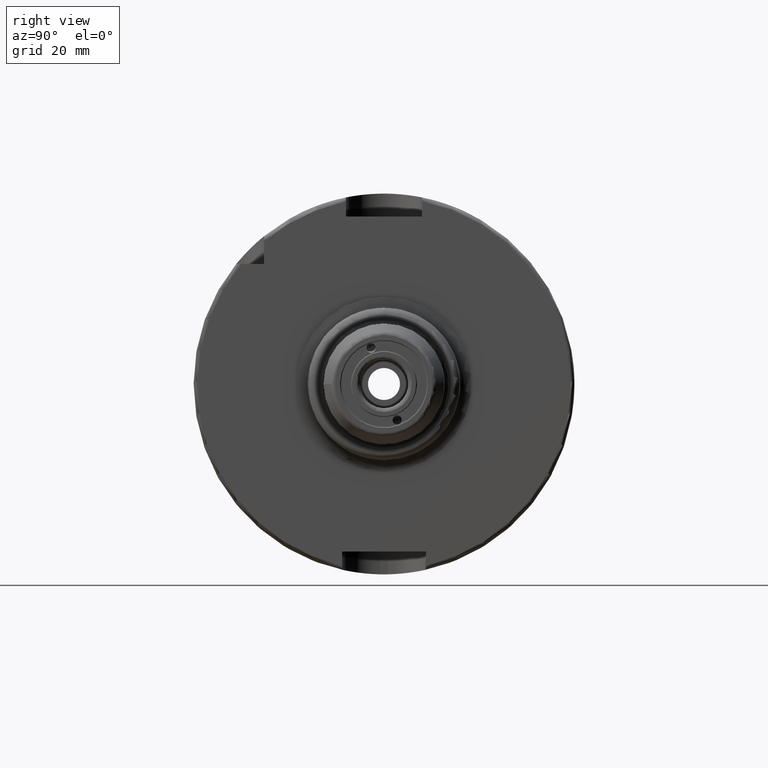
[diagram: clean part render]
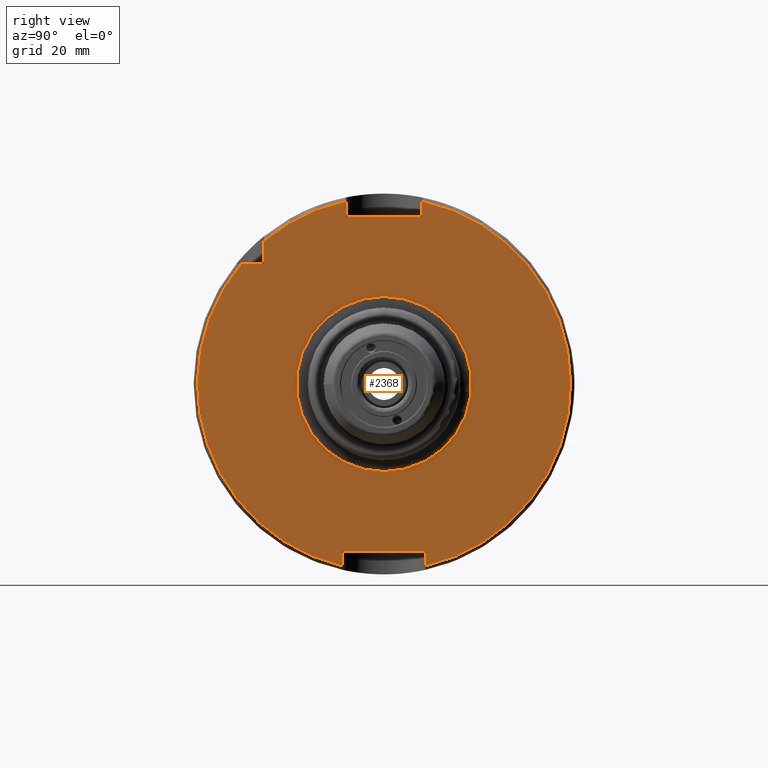
[diagram: same view with one face highlighted and labeled with its STEP entity id]
A machine part, right view. The second image highlights one B-rep face of the part: STEP entity #2368.
In plain terms, the highlighted planar face has unit normal (1, 0, 0).
Its self-contained STEP definition (entity closure, byte-faithful):
#90=FACE_BOUND('',#472,.T.);
#140=CIRCLE('',#2569,23.);
#141=CIRCLE('',#2571,49.);
#142=CIRCLE('',#2572,49.);
#143=CIRCLE('',#2573,49.);
#261=PLANE('',#2570);
#325=FACE_OUTER_BOUND('',#471,.T.);
#471=EDGE_LOOP('',(#1701,#1702,#1703,#1704,#1705,#1706,#1707,#1708,#1709,
#1710,#1711));
#472=EDGE_LOOP('',(#1712));
#689=LINE('',#3938,#811);
#690=LINE('',#3942,#812);
#691=LINE('',#3944,#813);
#692=LINE('',#3946,#814);
#693=LINE('',#3950,#815);
#694=LINE('',#3952,#816);
#695=LINE('',#3954,#817);
#696=LINE('',#3957,#818);
#811=VECTOR('',#2963,10.);
#812=VECTOR('',#2966,10.);
#813=VECTOR('',#2967,10.);
#814=VECTOR('',#2968,10.);
#815=VECTOR('',#2971,10.);
#816=VECTOR('',#2972,10.);
#817=VECTOR('',#2973,10.);
#818=VECTOR('',#2976,10.);
#977=VERTEX_POINT('',#3932);
#978=VERTEX_POINT('',#3936);
#979=VERTEX_POINT('',#3937);
#980=VERTEX_POINT('',#3939);
#981=VERTEX_POINT('',#3941);
#982=VERTEX_POINT('',#3943);
#983=VERTEX_POINT('',#3945);
#984=VERTEX_POINT('',#3947);
#985=VERTEX_POINT('',#3949);
#986=VERTEX_POINT('',#3951);
#987=VERTEX_POINT('',#3953);
#988=VERTEX_POINT('',#3955);
#1251=EDGE_CURVE('',#977,#977,#140,.T.);
#1252=EDGE_CURVE('',#978,#979,#689,.T.);
#1253=EDGE_CURVE('',#979,#980,#141,.T.);
#1254=EDGE_CURVE('',#980,#981,#690,.T.);
#1255=EDGE_CURVE('',#981,#982,#691,.T.);
#1256=EDGE_CURVE('',#982,#983,#692,.T.);
#1257=EDGE_CURVE('',#983,#984,#142,.T.);
#1258=EDGE_CURVE('',#984,#985,#693,.T.);
#1259=EDGE_CURVE('',#985,#986,#694,.T.);
#1260=EDGE_CURVE('',#986,#987,#695,.T.);
#1261=EDGE_CURVE('',#987,#988,#143,.T.);
#1262=EDGE_CURVE('',#988,#978,#696,.T.);
#1701=ORIENTED_EDGE('',*,*,#1252,.T.);
#1702=ORIENTED_EDGE('',*,*,#1253,.T.);
#1703=ORIENTED_EDGE('',*,*,#1254,.T.);
#1704=ORIENTED_EDGE('',*,*,#1255,.T.);
#1705=ORIENTED_EDGE('',*,*,#1256,.T.);
#1706=ORIENTED_EDGE('',*,*,#1257,.T.);
#1707=ORIENTED_EDGE('',*,*,#1258,.T.);
#1708=ORIENTED_EDGE('',*,*,#1259,.T.);
#1709=ORIENTED_EDGE('',*,*,#1260,.T.);
#1710=ORIENTED_EDGE('',*,*,#1261,.T.);
#1711=ORIENTED_EDGE('',*,*,#1262,.T.);
#1712=ORIENTED_EDGE('',*,*,#1251,.F.);
#2368=ADVANCED_FACE('',(#325,#90),#261,.T.);
#2569=AXIS2_PLACEMENT_3D('',#3934,#2959,#2960);
#2570=AXIS2_PLACEMENT_3D('',#3935,#2961,#2962);
#2571=AXIS2_PLACEMENT_3D('',#3940,#2964,#2965);
#2572=AXIS2_PLACEMENT_3D('',#3948,#2969,#2970);
#2573=AXIS2_PLACEMENT_3D('',#3956,#2974,#2975);
#2959=DIRECTION('center_axis',(1.,0.,0.));
#2960=DIRECTION('ref_axis',(0.,-1.,-1.22464679914735E-16));
#2961=DIRECTION('center_axis',(1.,0.,0.));
#2962=DIRECTION('ref_axis',(0.,0.,-1.));
#2963=DIRECTION('',(0.,-1.,0.));
#2964=DIRECTION('center_axis',(1.,0.,0.));
#2965=DIRECTION('ref_axis',(0.,0.,-1.));
#2966=DIRECTION('',(0.,0.,1.));
#2967=DIRECTION('',(0.,1.,0.));
#2968=DIRECTION('',(0.,0.,-1.));
#2969=DIRECTION('center_axis',(1.,0.,0.));
#2970=DIRECTION('ref_axis',(0.,0.,-1.));
#2971=DIRECTION('',(0.,0.,-1.));
#2972=DIRECTION('',(0.,-1.,0.));
#2973=DIRECTION('',(0.,0.,1.));
#2974=DIRECTION('center_axis',(1.,0.,0.));
#2975=DIRECTION('ref_axis',(0.,0.,-1.));
#2976=DIRECTION('',(0.,0.,-1.));
#3932=CARTESIAN_POINT('',(29.,-2.81668763803891E-15,-23.));
#3934=CARTESIAN_POINT('Origin',(29.,0.,0.));
#3935=CARTESIAN_POINT('Origin',(29.,0.,0.));
#3936=CARTESIAN_POINT('',(29.,-31.5,31.5));
#3937=CARTESIAN_POINT('',(29.,-37.5333185316726,31.5));
#3938=CARTESIAN_POINT('',(29.,-18.25,31.5));
#3939=CARTESIAN_POINT('',(29.,-11.,-47.7493455452533));
#3940=CARTESIAN_POINT('Origin',(29.,0.,0.));
#3941=CARTESIAN_POINT('',(29.,-11.,-44.));
#3942=CARTESIAN_POINT('',(29.,-11.,-22.));
#3943=CARTESIAN_POINT('',(29.,11.,-44.));
#3944=CARTESIAN_POINT('',(29.,-5.55111512312578E-16,-44.));
#3945=CARTESIAN_POINT('',(29.,11.,-47.7493455452533));
#3946=CARTESIAN_POINT('',(29.,11.,-22.));
#3947=CARTESIAN_POINT('',(29.,10.,47.9687398208458));
#3948=CARTESIAN_POINT('Origin',(29.,0.,0.));
#3949=CARTESIAN_POINT('',(29.,10.,44.));
#3950=CARTESIAN_POINT('',(29.,10.,22.));
#3951=CARTESIAN_POINT('',(29.,-10.,44.));
#3952=CARTESIAN_POINT('',(29.,0.,44.));
#3953=CARTESIAN_POINT('',(29.,-10.,47.9687398208458));
#3954=CARTESIAN_POINT('',(29.,-10.,22.));
#3955=CARTESIAN_POINT('',(29.,-31.5,37.5333185316726));
#3956=CARTESIAN_POINT('Origin',(29.,0.,0.));
#3957=CARTESIAN_POINT('',(29.,-31.5,15.75));